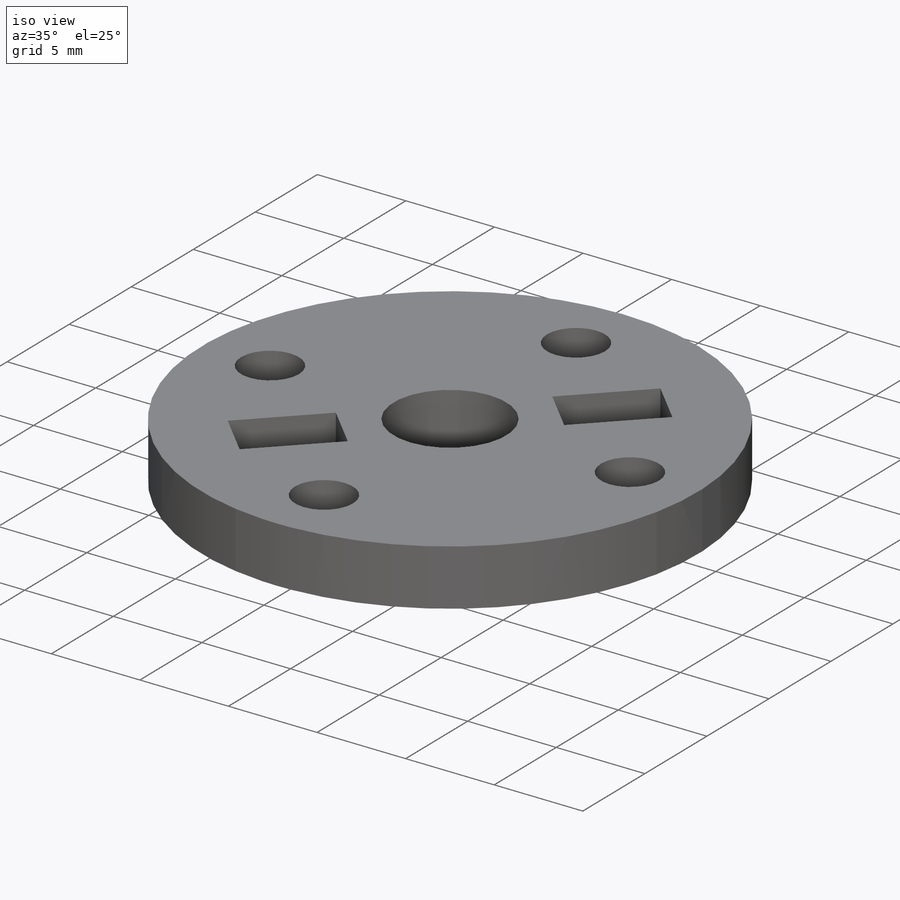
[diagram: iso view]
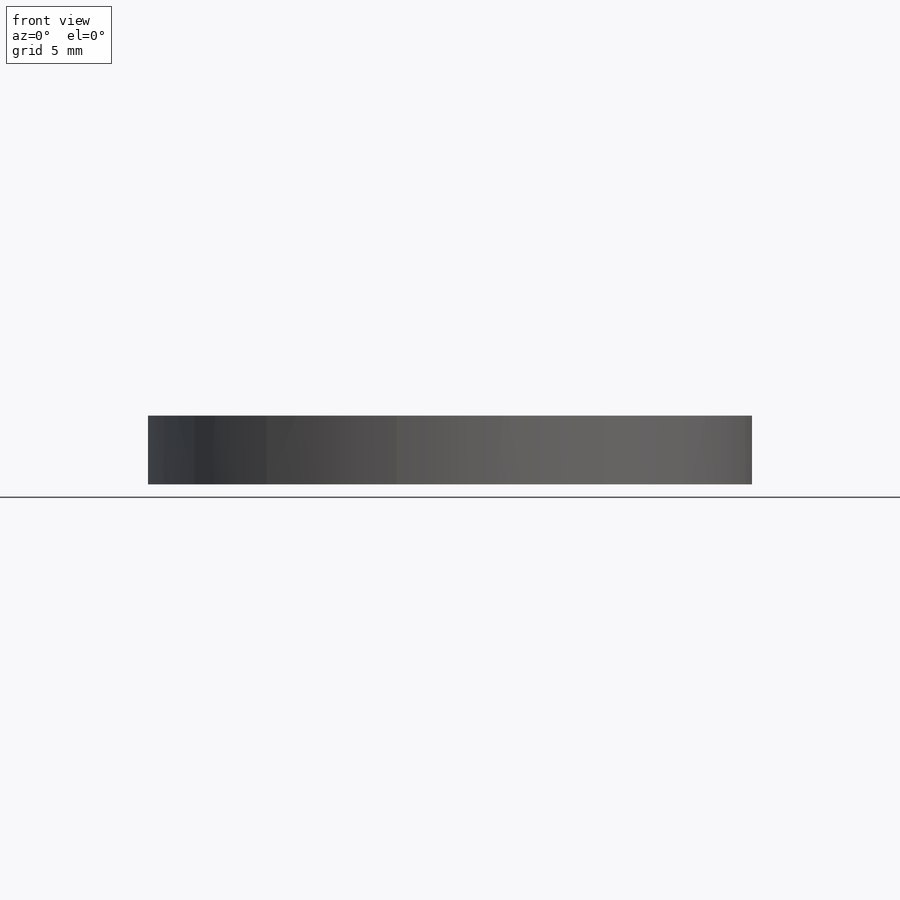
[diagram: front view]
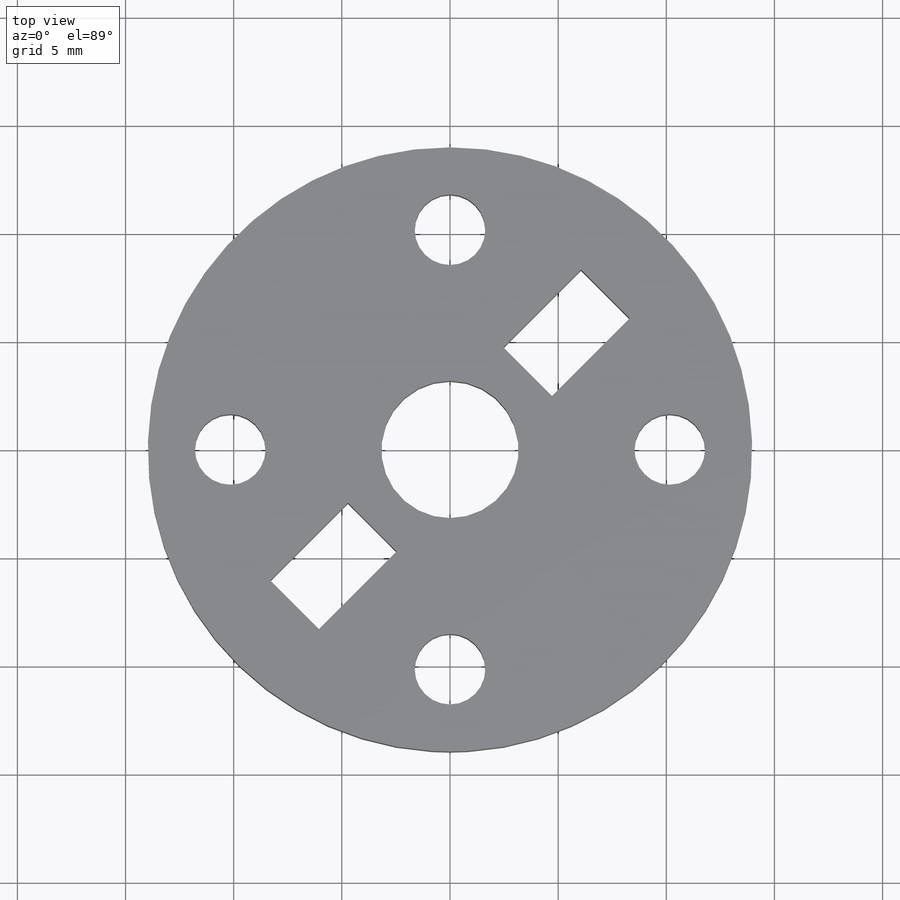
[diagram: top view]
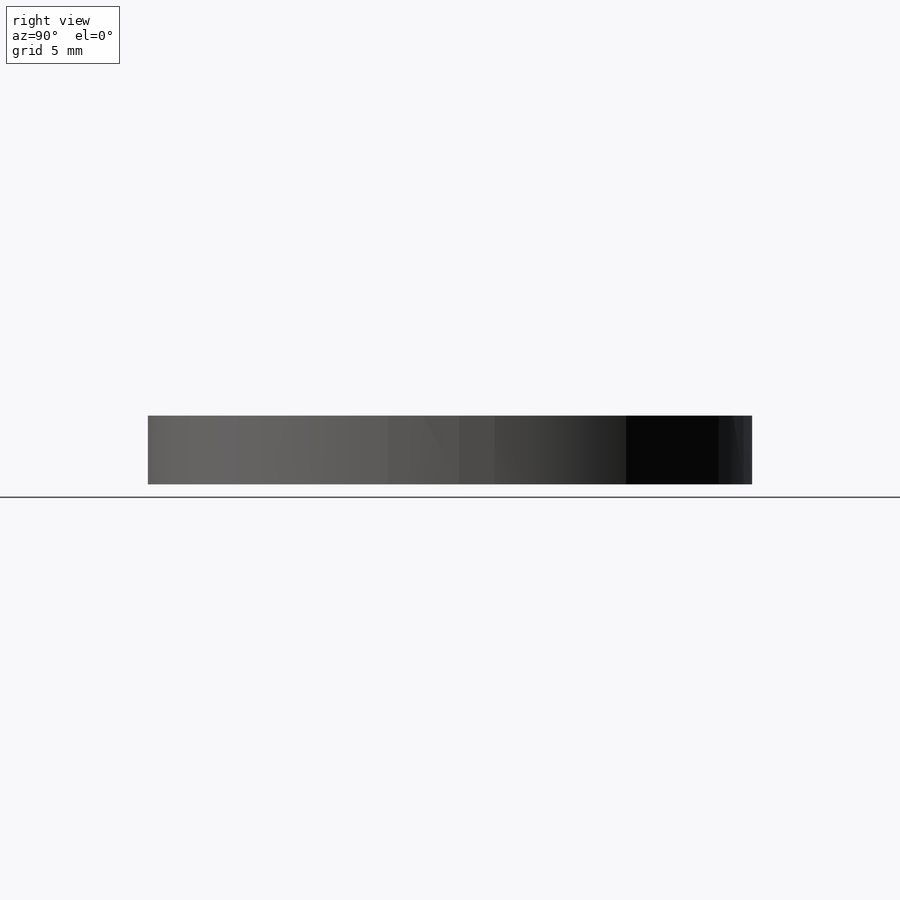
[diagram: right view]
SOLIDWORKS PART (.sldprt)
format: sldprt  version: not decoded by parser v0  size: 188,928 bytes
history: native  units: mm
features: sketch x6, cut_extrude x2, pattern_circular x2, material x1, extrude x1, hole x1 (+11 scaffold rows collapsed)
feature tree (24):
  scaffold x11  (default folders/planes/origin — collapsed)
  material  "Material <not specified>"
  sketch  "Sketch1"  dims[D1=27.94mm]
  extrude  "Boss-Extrude1"  Depth=3.175mm
  sketch  "Sketch2"  dims[D1=6.35mm]
  cut_extrude  "Cut-Extrude1"  Depth=3.175mm
  sketch  "Sketch3"  dims[c1.D1=~9.532377mm c2.D1=45.0deg c2.D2=7.62mm]
  hole  "#4 Clearance Hole1"  Diameter=3.2639mm Depth=10.16mm
  sketch  "Sketch5"  dims[D1=10.16mm]
  sketch  "Sketch4"  dims[hole-wizard template sketch: 50 standard entries collapsed; hole parameters above]
  pattern_circular  "CirPattern1"  Count=4 Angle=360deg
  sketch  "Sketch6"  dims[c1.D1=~4.449361mm c2.D1=180.0deg c2.D2=5.08mm c2.D3=3.175mm]
  cut_extrude  "Cut-Extrude2"  Depth=5.08mm
  pattern_circular  "CirPattern2"  Count=2 Angle=360deg
decode coverage: 12 of 12 modeling features carry decoded parameters
note: ~ marks probable driven/reference dimensions
note: suppression state not decoded; provenance and decode notes live in map.json
